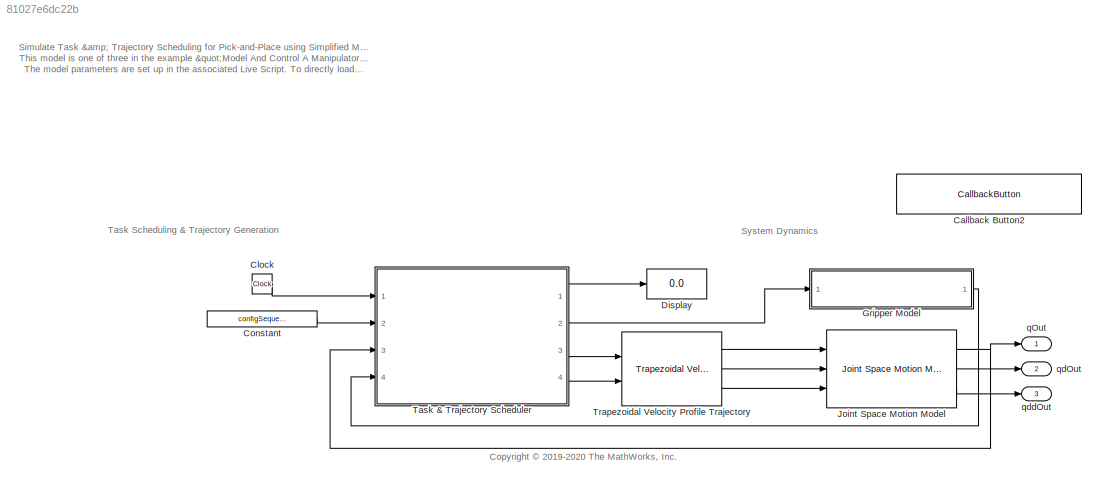
MODEL slx_81027e6dc22b
KIND model
CONFIG AbsTol = 1e-2
CONFIG EnableMultiTasking = off
CONFIG FixedStep = auto
CONFIG MaxStep = 0.1
CONFIG MinStep = auto
CONFIG RelTol = 1e-2
CONFIG SampleTimeConstraint = Unconstrained
CONFIG SolverName = VariableStepAuto
CONFIG StartTime = 0.0
CONFIG StopTime = 20
BLOCK [CallbackButton] Callback Button2
  ButtonText = Load Default Parameters (will overwrite workspace)
  ClickFcn = robot = loadrobot('abbYumi', 'Gravity', [0 0 -9.81]);\nload abbExampleRSTVariables.mat;
BLOCK [Clock] Clock
BLOCK [Constant] Constant
  Value = configSequence
BLOCK [Display] Display
  Decimation = 1
  Ports = [1]
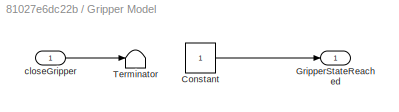
BLOCK [SubSystem] Gripper Model
  Ports = [1, 1]
  RequestExecContextInheritance = off
BLOCK [Constant] Gripper Model/Constant
BLOCK [Outport] Gripper Model/GripperStateReached
BLOCK [Terminator] Gripper Model/Terminator
BLOCK [Inport] Gripper Model/closeGripper
BLOCK [Reference] Joint Space Motion Model  REF=robotmaniplib/Joint Space Motion Model
  Ports = [3, 3]
  SourceBlock = robotmaniplib/Joint Space Motion Model
  SourceProductName = Robotics System Toolbox
  SourceType = Joint Space Motion Model
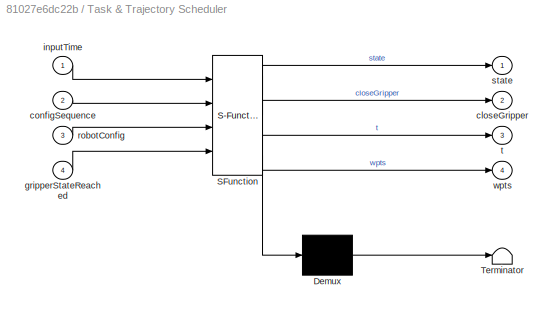
BLOCK [SubSystem] Task & Trajectory Scheduler
  Commented = on
  ErrorFcn = Stateflow.Translate.translate
  PermitHierarchicalResolution = ExplicitOnly
  Ports = [4, 4]
  RequestExecContextInheritance = off
  SFBlockType = MATLAB Function
  TreatAsAtomicUnit = on
BLOCK [Demux] Task & Trajectory Scheduler/ Demux 
  Outputs = 1
  Ports = [1, 1]
BLOCK [S-Function] Task & Trajectory Scheduler/ SFunction 
  EnableBusSupport = on
  FunctionName = sf_sfun
  PortCounts = [4 5]
  Ports = [4, 5]
  SFcnIsStateOwnerBlock = off
  SFunctionDeploymentMode = off
  Tag = Stateflow S-Function 2
BLOCK [Terminator] Task & Trajectory Scheduler/ Terminator 
BLOCK [Outport] Task & Trajectory Scheduler/closeGripper
  Port = 2
BLOCK [Inport] Task & Trajectory Scheduler/configSequence
  Port = 2
BLOCK [Inport] Task & Trajectory Scheduler/gripperStateReached
  Port = 4
BLOCK [Inport] Task & Trajectory Scheduler/inputTime
BLOCK [Inport] Task & Trajectory Scheduler/robotConfig
  Port = 3
BLOCK [Outport] Task & Trajectory Scheduler/state
BLOCK [Outport] Task & Trajectory Scheduler/t
  Port = 3
BLOCK [Outport] Task & Trajectory Scheduler/wpts
  Port = 4
BLOCK [Reference] Trapezoidal Velocity Profile Trajectory  REF=robotcorelib/Trapezoidal Velocity Profile Trajectory
  Ports = [2, 3]
  SourceBlock = robotcorelib/Trapezoidal Velocity Profile Trajectory
  SourceProductName = Robotics System Toolbox
  SourceType = robotics.slcore.internal.block.TrapVelTrajSys
BLOCK [Outport] qOut
  NameLocation = right
BLOCK [Outport] qdOut
  NameLocation = right
  Port = 2
BLOCK [Outport] qddOut
  NameLocation = right
  Port = 3
ANNOTATION (root): <copyright redacted>
ANNOTATION (root): Simulate Task & Trajectory Scheduling for Pick-and-Place using Simplified Manipulator System Dynamics This model is one of three in the example "Model And Control A Manipulator Arm with RST And Simscape". The example shows how to design and simulate a pick-and-place task using an ABB YuMi arm. It also shows how to model a system with different levels of fidelity in order to focus on better focus o...<+392ch>
ANNOTATION (root): System Dynamics
ANNOTATION (root): Task Scheduling & Trajectory Generation
LINE Clock:1 -> Task & Trajectory Scheduler:1
LINE Constant:1 -> Task & Trajectory Scheduler:2
LINE Gripper Model/Constant:1 -> Gripper Model/GripperStateReached:1
LINE Gripper Model/closeGripper:1 -> Gripper Model/Terminator:1
LINE Gripper Model:1 -> Task & Trajectory Scheduler:4
NET Joint Space Motion Model:1 -> Task & Trajectory Scheduler:3, qOut:1
LINE Joint Space Motion Model:2 -> qdOut:1
LINE Joint Space Motion Model:3 -> qddOut:1
LINE Task & Trajectory Scheduler:1 -> Display:1
LINE Task & Trajectory Scheduler:2 -> Gripper Model:1
LINE Task & Trajectory Scheduler:3 -> Trapezoidal Velocity Profile Trajectory:1
LINE Task & Trajectory Scheduler:4 -> Trapezoidal Velocity Profile Trajectory:2
LINE Trapezoidal Velocity Profile Trajectory:1 -> Joint Space Motion Model:1
LINE Trapezoidal Velocity Profile Trajectory:2 -> Joint Space Motion Model:2
LINE Trapezoidal Velocity Profile Trajectory:3 -> Joint Space Motion Model:3
note: NET lines group one-source signal fan-out (src -> all destinations, sorted); 1:1 wires keep LINE
CHART Task & Trajectory Scheduler states=1 transitions=1
  STATE_LABEL 'eML_blk_kernel()'
  STATE_LABEL 'SCRIPT:\nfunction [state, closeGripper, t, wpts] = commandLogic(inputTime, configSequence, robotConfig, gripperStateReached)\n\npersistent motionState\npersistent resetTimeValue\n\n% Set some variables\nposTgtThreshold = 0.015;\n\n% Initialize persistent variables\nif isempty(motionState)\n    motionState = 0;\nend\nif isempty(resetTimeValue)\n    resetTimeValue = 0;\nend\n\n% Output the state and time\nstate = mot...<+2067ch>'
CHART  states=0 transitions=0
